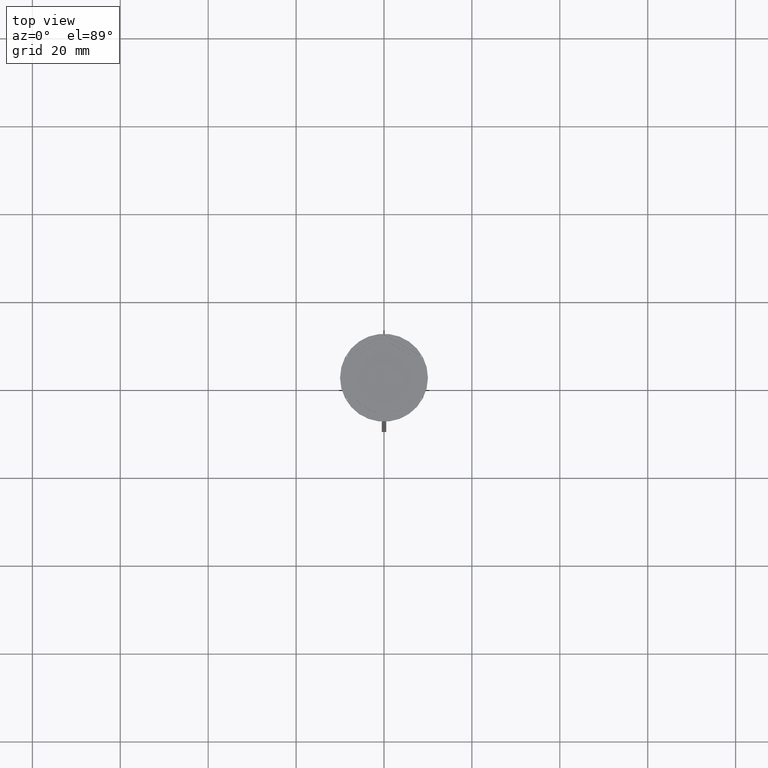
[diagram: clean part render]
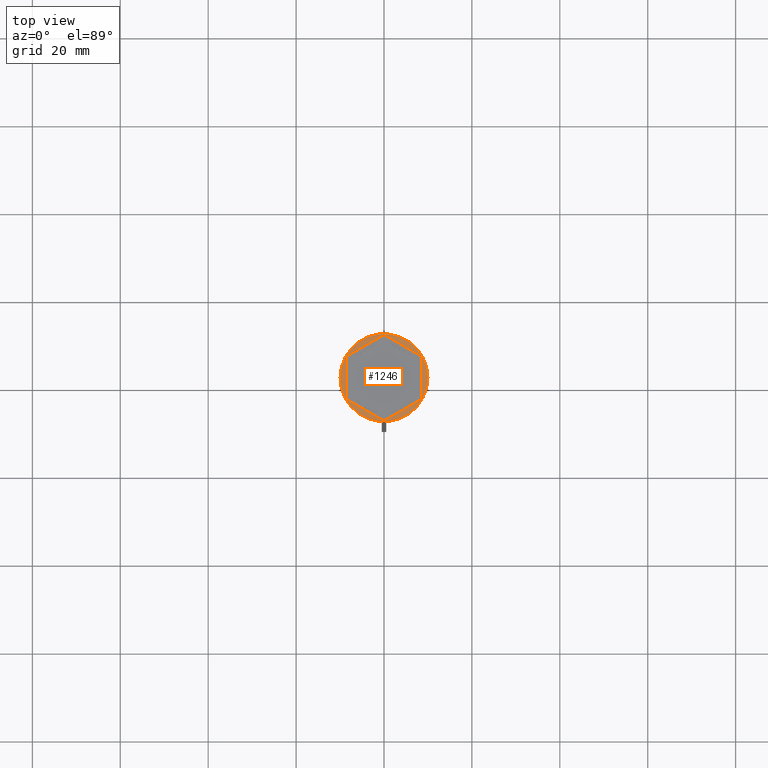
[diagram: same view with one face highlighted and labeled with its STEP entity id]
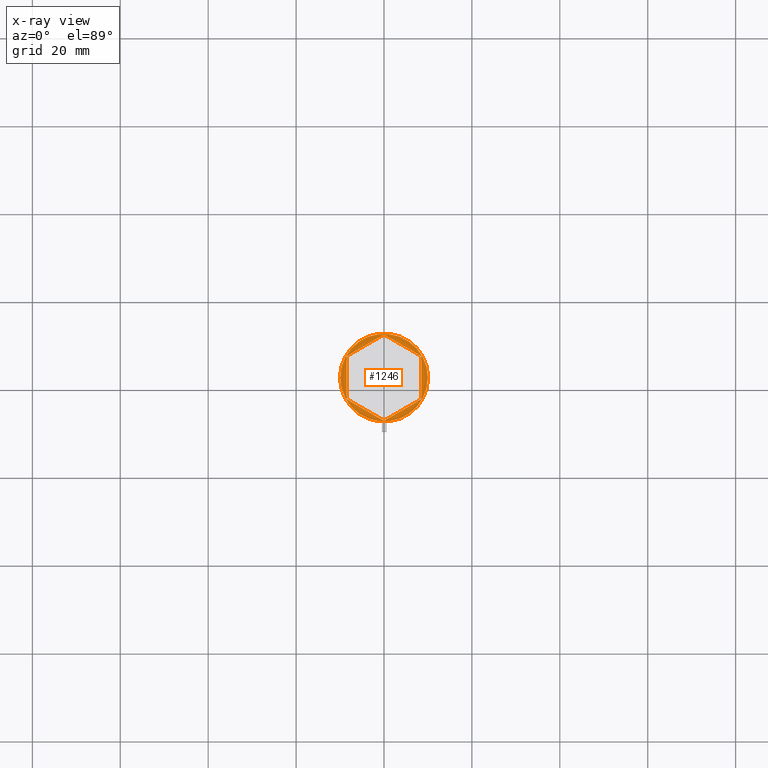
[diagram: x-ray of the same camera — body ghosted, the highlighted face saturated]
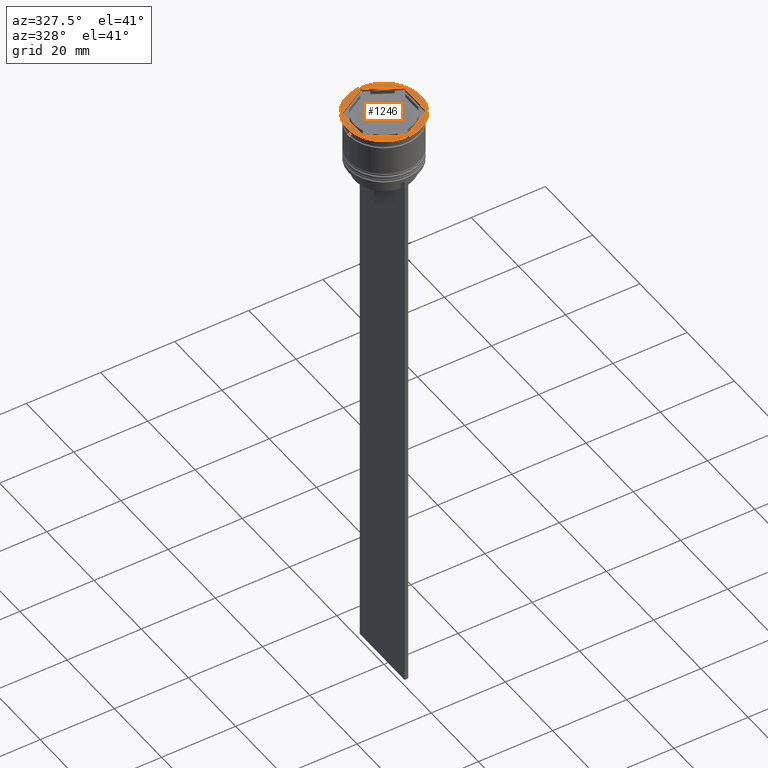
[diagram: same view with one face highlighted and labeled with its STEP entity id]
A machine part, top view. The second image highlights one B-rep face of the part: STEP entity #1246.
The next image is the same camera in x-ray: the body ghosted, the highlighted face saturated — about 0% of this face is hidden behind the body in this view.
A second angle (auxiliary view) of the same face is appended — the face is thin or edge-on in the first view.
In plain terms, the highlighted planar face has unit normal (0, -0, 1).
Its self-contained STEP definition (entity closure, byte-faithful):
#35 = DIRECTION ( 'NONE',  ( 1.000000000000000000, 0.000000000000000000, 0.000000000000000000 ) ) ;
#37 = CARTESIAN_POINT ( 'NONE',  ( 0.000000000000000000, 0.000000000000000000, 0.000000000000000000 ) ) ;
#60 = CARTESIAN_POINT ( 'NONE',  ( -8.500000000000000000, 4.907477288111818936, 0.000000000000000000 ) ) ;
#93 = EDGE_CURVE ( 'NONE', #403, #1616, #599, .T. ) ;
#143 = EDGE_LOOP ( 'NONE', ( #2016, #207, #1911, #1776, #2470, #1432 ) ) ;
#207 = ORIENTED_EDGE ( 'NONE', *, *, #1030, .F. ) ;
#271 = VERTEX_POINT ( 'NONE', #60 ) ;
#357 = EDGE_LOOP ( 'NONE', ( #1910, #2643 ) ) ;
#368 = CARTESIAN_POINT ( 'NONE',  ( 8.729740977282959667E-16, -9.814954576223637872, 0.000000000000000000 ) ) ;
#403 = VERTEX_POINT ( 'NONE', #1698 ) ;
#411 = EDGE_CURVE ( 'NONE', #1354, #890, #1504, .T. ) ;
#435 = CARTESIAN_POINT ( 'NONE',  ( 8.500000000000000000, -4.907477288111818936, 0.000000000000000000 ) ) ;
#440 = DIRECTION ( 'NONE',  ( -0.8660254037844387076, -0.4999999999999997780, 0.000000000000000000 ) ) ;
#457 = CARTESIAN_POINT ( 'NONE',  ( 0.000000000000000000, 9.814954576223636096, 0.000000000000000000 ) ) ;
#567 = VECTOR ( 'NONE', #440, 1000.000000000000114 ) ;
#577 = LINE ( 'NONE', #1010, #1719 ) ;
#590 = CARTESIAN_POINT ( 'NONE',  ( -8.500000000000000000, 4.907477288111818936, 0.000000000000000000 ) ) ;
#599 = CIRCLE ( 'NONE', #910, 10.00000000000000000 ) ;
#609 = AXIS2_PLACEMENT_3D ( 'NONE', #37, #1659, #2484 ) ;
#737 = VECTOR ( 'NONE', #1412, 1000.000000000000000 ) ;
#800 = DIRECTION ( 'NONE',  ( 0.000000000000000000, 1.000000000000000000, 0.000000000000000000 ) ) ;
#805 = CARTESIAN_POINT ( 'NONE',  ( 8.500000000000000000, 4.907477288111819824, 0.000000000000000000 ) ) ;
#864 = CARTESIAN_POINT ( 'NONE',  ( 10.00000000000000000, 0.000000000000000000, 0.000000000000000000 ) ) ;
#882 = LINE ( 'NONE', #457, #567 ) ;
#890 = VERTEX_POINT ( 'NONE', #368 ) ;
#910 = AXIS2_PLACEMENT_3D ( 'NONE', #2109, #1878, #35 ) ;
#925 = EDGE_CURVE ( 'NONE', #271, #1354, #1024, .T. ) ;
#954 = CARTESIAN_POINT ( 'NONE',  ( 0.000000000000000000, 0.000000000000000000, 0.000000000000000000 ) ) ;
#1007 = AXIS2_PLACEMENT_3D ( 'NONE', #954, #1365, #1764 ) ;
#1010 = CARTESIAN_POINT ( 'NONE',  ( 8.500000000000000000, -4.907477288111818936, 0.000000000000000000 ) ) ;
#1024 = LINE ( 'NONE', #590, #737 ) ;
#1030 = EDGE_CURVE ( 'NONE', #1624, #2219, #577, .T. ) ;
#1073 = PLANE ( 'NONE',  #609 ) ;
#1109 = DIRECTION ( 'NONE',  ( 0.8660254037844385966, 0.5000000000000000000, 0.000000000000000000 ) ) ;
#1119 = CARTESIAN_POINT ( 'NONE',  ( 0.000000000000000000, 9.814954576223636096, 0.000000000000000000 ) ) ;
#1199 = EDGE_CURVE ( 'NONE', #2650, #271, #882, .T. ) ;
#1225 = DIRECTION ( 'NONE',  ( -0.8660254037844388186, 0.4999999999999997224, 0.000000000000000000 ) ) ;
#1246 = ADVANCED_FACE ( 'NONE', ( #1489, #1457 ), #1073, .T. ) ;
#1300 = CARTESIAN_POINT ( 'NONE',  ( -8.500000000000000000, -4.907477288111819824, 0.000000000000000000 ) ) ;
#1354 = VERTEX_POINT ( 'NONE', #1300 ) ;
#1365 = DIRECTION ( 'NONE',  ( -0.000000000000000000, -0.000000000000000000, 1.000000000000000000 ) ) ;
#1407 = CARTESIAN_POINT ( 'NONE',  ( 8.500000000000000000, 4.907477288111819824, 0.000000000000000000 ) ) ;
#1412 = DIRECTION ( 'NONE',  ( 0.000000000000000000, -1.000000000000000000, 0.000000000000000000 ) ) ;
#1432 = ORIENTED_EDGE ( 'NONE', *, *, #1199, .F. ) ;
#1457 = FACE_OUTER_BOUND ( 'NONE', #357, .T. ) ;
#1489 = FACE_BOUND ( 'NONE', #143, .T. ) ;
#1504 = LINE ( 'NONE', #1913, #2377 ) ;
#1508 = LINE ( 'NONE', #2557, #1995 ) ;
#1616 = VERTEX_POINT ( 'NONE', #864 ) ;
#1624 = VERTEX_POINT ( 'NONE', #435 ) ;
#1659 = DIRECTION ( 'NONE',  ( 0.000000000000000000, -0.000000000000000000, 1.000000000000000000 ) ) ;
#1698 = CARTESIAN_POINT ( 'NONE',  ( -10.00000000000000000, 1.224646799147353256E-15, 0.000000000000000000 ) ) ;
#1719 = VECTOR ( 'NONE', #800, 1000.000000000000000 ) ;
#1764 = DIRECTION ( 'NONE',  ( 1.000000000000000000, 0.000000000000000000, 0.000000000000000000 ) ) ;
#1776 = ORIENTED_EDGE ( 'NONE', *, *, #411, .F. ) ;
#1878 = DIRECTION ( 'NONE',  ( -0.000000000000000000, -0.000000000000000000, 1.000000000000000000 ) ) ;
#1910 = ORIENTED_EDGE ( 'NONE', *, *, #1950, .T. ) ;
#1911 = ORIENTED_EDGE ( 'NONE', *, *, #2280, .F. ) ;
#1913 = CARTESIAN_POINT ( 'NONE',  ( -8.500000000000000000, -4.907477288111819824, 0.000000000000000000 ) ) ;
#1950 = EDGE_CURVE ( 'NONE', #1616, #403, #2036, .T. ) ;
#1995 = VECTOR ( 'NONE', #1109, 1000.000000000000227 ) ;
#2016 = ORIENTED_EDGE ( 'NONE', *, *, #2631, .F. ) ;
#2036 = CIRCLE ( 'NONE', #1007, 10.00000000000000000 ) ;
#2109 = CARTESIAN_POINT ( 'NONE',  ( 0.000000000000000000, 0.000000000000000000, 0.000000000000000000 ) ) ;
#2144 = DIRECTION ( 'NONE',  ( 0.8660254037844387076, -0.4999999999999997780, 0.000000000000000000 ) ) ;
#2175 = VECTOR ( 'NONE', #1225, 1000.000000000000000 ) ;
#2219 = VERTEX_POINT ( 'NONE', #805 ) ;
#2255 = LINE ( 'NONE', #1407, #2175 ) ;
#2280 = EDGE_CURVE ( 'NONE', #890, #1624, #1508, .T. ) ;
#2377 = VECTOR ( 'NONE', #2144, 1000.000000000000114 ) ;
#2470 = ORIENTED_EDGE ( 'NONE', *, *, #925, .F. ) ;
#2484 = DIRECTION ( 'NONE',  ( 1.000000000000000000, 0.000000000000000000, 0.000000000000000000 ) ) ;
#2557 = CARTESIAN_POINT ( 'NONE',  ( 8.729740977282959667E-16, -9.814954576223637872, 0.000000000000000000 ) ) ;
#2631 = EDGE_CURVE ( 'NONE', #2219, #2650, #2255, .T. ) ;
#2643 = ORIENTED_EDGE ( 'NONE', *, *, #93, .T. ) ;
#2650 = VERTEX_POINT ( 'NONE', #1119 ) ;